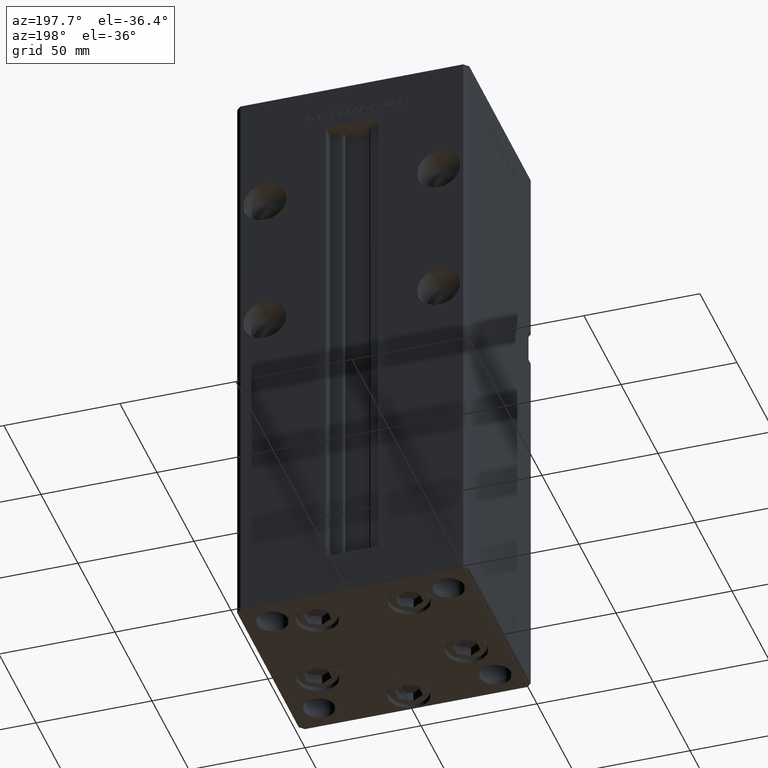
[diagram: clean part render]
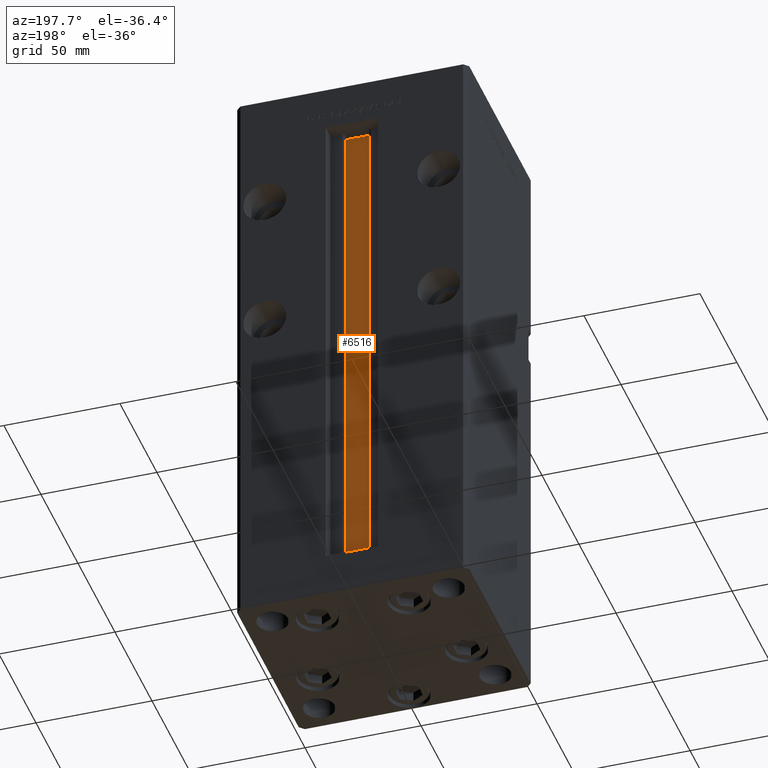
[diagram: same view with one face highlighted and labeled with its STEP entity id]
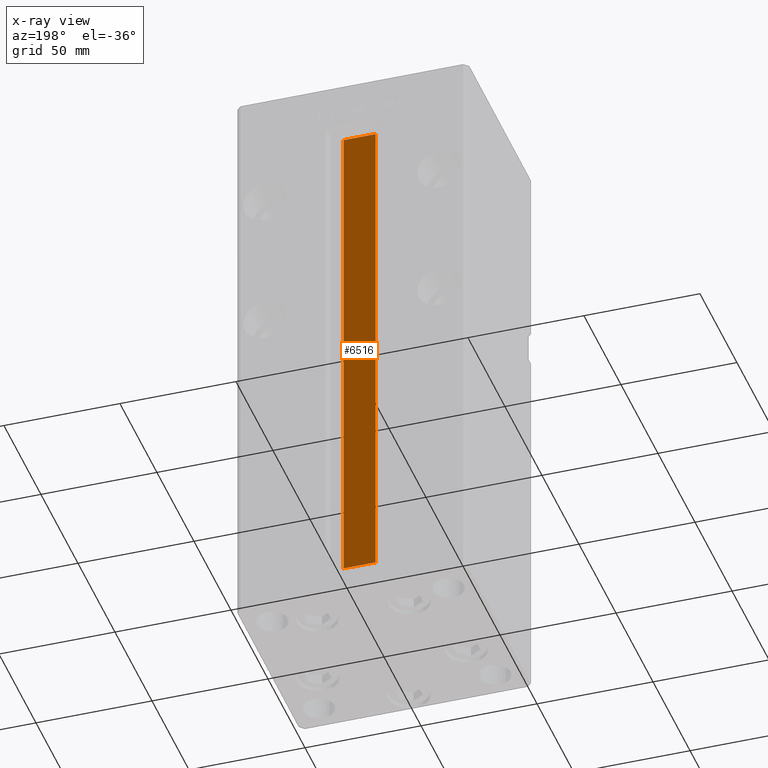
[diagram: x-ray of the same camera — body ghosted, the highlighted face saturated]
A machine part, auxiliary view. The second image highlights one B-rep face of the part: STEP entity #6516.
The next image is the same camera in x-ray: the body ghosted, the highlighted face saturated — about 0% of this face is hidden behind the body in this view.
In plain terms, the highlighted planar face has unit normal (0, -1, 0).
Its self-contained STEP definition (entity closure, byte-faithful):
#1057 = EDGE_CURVE ( 'NONE', #17016, #13952, #29968, .T. ) ;
#3752 = EDGE_CURVE ( 'NONE', #13952, #46877, #13611, .T. ) ;
#6304 = CARTESIAN_POINT ( 'NONE',  ( 6.876153656360465050, 32.99999999999986500, 218.5000000000000000 ) ) ;
#6516 = ADVANCED_FACE ( 'NONE', ( #47481 ), #39391, .F. ) ;
#8436 = ORIENTED_EDGE ( 'NONE', *, *, #1057, .F. ) ;
#8743 = AXIS2_PLACEMENT_3D ( 'NONE', #10632, #51262, #34320 ) ;
#10632 = CARTESIAN_POINT ( 'NONE',  ( 6.876153656360465050, 32.99999999999986500, 0.000000000000000000 ) ) ;
#13463 = CARTESIAN_POINT ( 'NONE',  ( -6.876153656360465050, 32.99999999999986500, 218.5000000000000000 ) ) ;
#13563 = LINE ( 'NONE', #17862, #25799 ) ;
#13611 = LINE ( 'NONE', #49921, #32732 ) ;
#13952 = VERTEX_POINT ( 'NONE', #6304 ) ;
#16125 = VECTOR ( 'NONE', #33374, 1000.000000000000000 ) ;
#16241 = ORIENTED_EDGE ( 'NONE', *, *, #48481, .F. ) ;
#17016 = VERTEX_POINT ( 'NONE', #21606 ) ;
#17862 = CARTESIAN_POINT ( 'NONE',  ( 6.876153656360465050, 32.99999999999986500, 0.000000000000000000 ) ) ;
#19821 = ORIENTED_EDGE ( 'NONE', *, *, #40213, .T. ) ;
#21606 = CARTESIAN_POINT ( 'NONE',  ( 6.876153656360465050, 32.99999999999986500, 0.000000000000000000 ) ) ;
#25799 = VECTOR ( 'NONE', #26186, 1000.000000000000000 ) ;
#25939 = CARTESIAN_POINT ( 'NONE',  ( 6.876153656360465050, 32.99999999999986500, 0.000000000000000000 ) ) ;
#26186 = DIRECTION ( 'NONE',  ( 1.000000000000000000, -0.000000000000000000, -0.000000000000000000 ) ) ;
#29968 = LINE ( 'NONE', #25939, #43776 ) ;
#31046 = EDGE_LOOP ( 'NONE', ( #8436, #16241, #19821, #44068 ) ) ;
#32732 = VECTOR ( 'NONE', #34039, 1000.000000000000000 ) ;
#33374 = DIRECTION ( 'NONE',  ( -0.000000000000000000, -0.000000000000000000, 1.000000000000000000 ) ) ;
#34039 = DIRECTION ( 'NONE',  ( -1.000000000000000000, 0.000000000000000000, 0.000000000000000000 ) ) ;
#34320 = DIRECTION ( 'NONE',  ( 0.000000000000000000, 0.000000000000000000, -1.000000000000000000 ) ) ;
#35946 = VERTEX_POINT ( 'NONE', #42399 ) ;
#36870 = CARTESIAN_POINT ( 'NONE',  ( -6.876153656360465050, 32.99999999999986500, 0.000000000000000000 ) ) ;
#39391 = PLANE ( 'NONE',  #8743 ) ;
#40213 = EDGE_CURVE ( 'NONE', #35946, #46877, #49523, .T. ) ;
#42332 = DIRECTION ( 'NONE',  ( -0.000000000000000000, -0.000000000000000000, 1.000000000000000000 ) ) ;
#42399 = CARTESIAN_POINT ( 'NONE',  ( -6.876153656360465050, 32.99999999999986500, 0.000000000000000000 ) ) ;
#43776 = VECTOR ( 'NONE', #42332, 1000.000000000000000 ) ;
#44068 = ORIENTED_EDGE ( 'NONE', *, *, #3752, .F. ) ;
#46877 = VERTEX_POINT ( 'NONE', #13463 ) ;
#47481 = FACE_OUTER_BOUND ( 'NONE', #31046, .T. ) ;
#48481 = EDGE_CURVE ( 'NONE', #35946, #17016, #13563, .T. ) ;
#49523 = LINE ( 'NONE', #36870, #16125 ) ;
#49921 = CARTESIAN_POINT ( 'NONE',  ( 0.000000000000000000, 32.99999999999986500, 218.5000000000000000 ) ) ;
#51262 = DIRECTION ( 'NONE',  ( 0.000000000000000000, -1.000000000000000000, -0.000000000000000000 ) ) ;